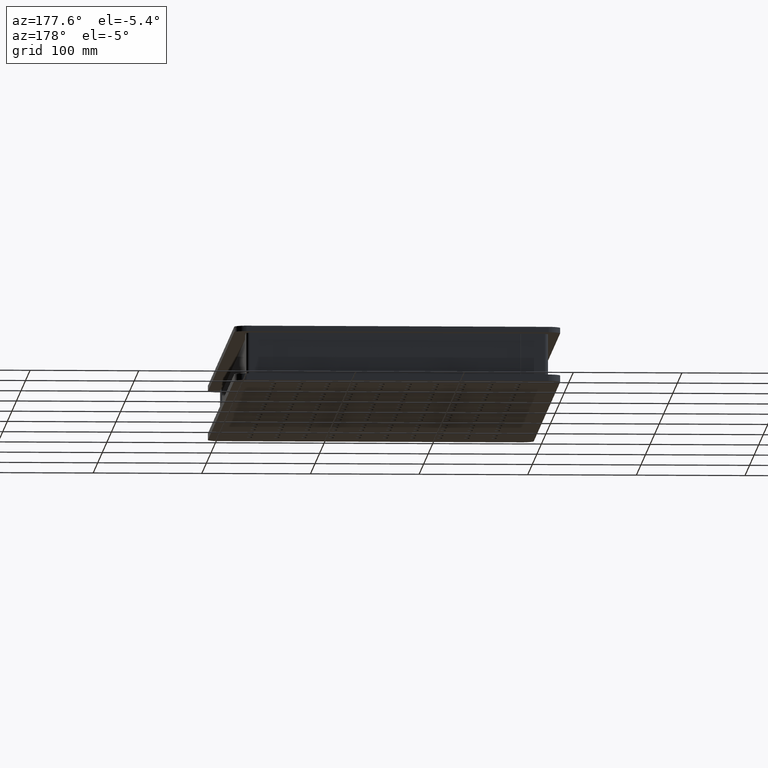
[diagram: clean part render]
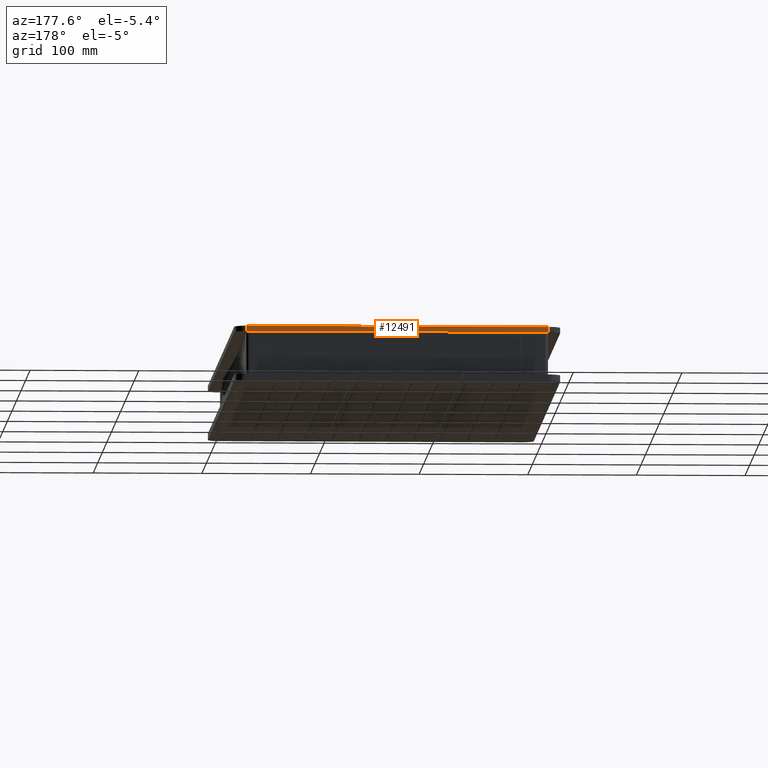
[diagram: same view with one face highlighted and labeled with its STEP entity id]
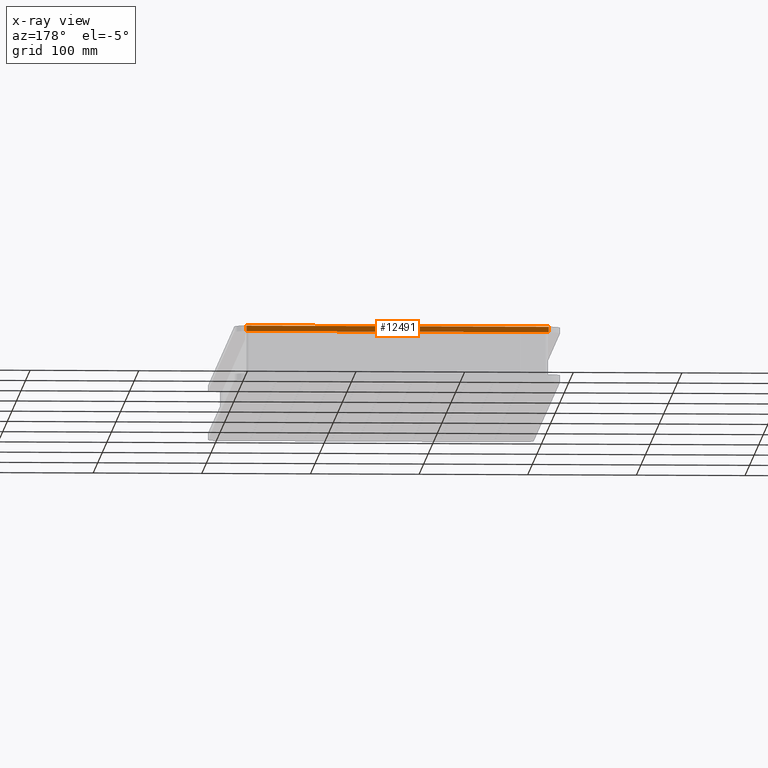
[diagram: x-ray of the same camera — body ghosted, the highlighted face saturated]
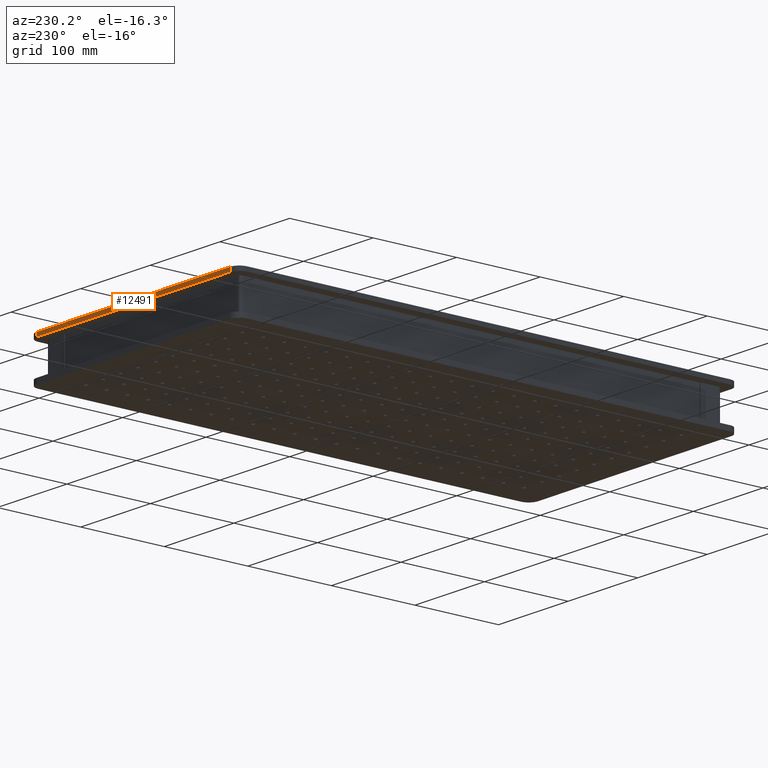
[diagram: same view with one face highlighted and labeled with its STEP entity id]
A machine part, auxiliary view. The second image highlights one B-rep face of the part: STEP entity #12491.
The next image is the same camera in x-ray: the body ghosted, the highlighted face saturated — about 0% of this face is hidden behind the body in this view.
A second angle (auxiliary view) of the same face is appended — the face is thin or edge-on in the first view.
In plain terms, the highlighted planar face has unit normal (0, -1, 0).
Its self-contained STEP definition (entity closure, byte-faithful):
#984 = VECTOR ( 'NONE', #2076, 1000.000000000000000 ) ;
#1102 = LINE ( 'NONE', #8623, #12375 ) ;
#2076 = DIRECTION ( 'NONE',  ( -1.000000000000000000, -0.000000000000000000, -0.000000000000000000 ) ) ;
#2217 = EDGE_CURVE ( 'NONE', #15389, #5450, #1102, .T. ) ;
#3413 = CARTESIAN_POINT ( 'NONE',  ( 114.6333857621487624, 308.9691974502528637, -350.0013852687679901 ) ) ;
#3646 = PLANE ( 'NONE',  #7671 ) ;
#3710 = VERTEX_POINT ( 'NONE', #13572 ) ;
#3784 = ORIENTED_EDGE ( 'NONE', *, *, #17242, .F. ) ;
#3897 = EDGE_CURVE ( 'NONE', #19291, #15389, #9606, .T. ) ;
#3964 = DIRECTION ( 'NONE',  ( -0.000000000000000000, -1.224646799147353207E-16, -1.000000000000000000 ) ) ;
#5450 = VERTEX_POINT ( 'NONE', #15523 ) ;
#5481 = CARTESIAN_POINT ( 'NONE',  ( -385.3666142378513655, 308.9691974502528637, -355.0013852687679901 ) ) ;
#7149 = DIRECTION ( 'NONE',  ( 0.000000000000000000, 1.224646799147353207E-16, 1.000000000000000000 ) ) ;
#7671 = AXIS2_PLACEMENT_3D ( 'NONE', #12654, #9405, #18507 ) ;
#8233 = CARTESIAN_POINT ( 'NONE',  ( 392.6333857621489187, 308.9691974502528637, -350.0013852687679901 ) ) ;
#8257 = DIRECTION ( 'NONE',  ( 1.000000000000000000, 0.000000000000000000, 0.000000000000000000 ) ) ;
#8534 = VECTOR ( 'NONE', #7149, 1000.000000000000000 ) ;
#8623 = CARTESIAN_POINT ( 'NONE',  ( 114.6333857621487624, 308.9691974502528637, -350.0013852687679901 ) ) ;
#9394 = VECTOR ( 'NONE', #8257, 1000.000000000000000 ) ;
#9405 = DIRECTION ( 'NONE',  ( 0.000000000000000000, -1.000000000000000000, 1.224646799147353207E-16 ) ) ;
#9606 = LINE ( 'NONE', #15644, #984 ) ;
#10060 = CARTESIAN_POINT ( 'NONE',  ( 392.6333857621489187, 308.9691974502528637, -350.0013852687679901 ) ) ;
#11403 = LINE ( 'NONE', #8233, #8534 ) ;
#12375 = VECTOR ( 'NONE', #3964, 1000.000000000000000 ) ;
#12491 = ADVANCED_FACE ( 'NONE', ( #12760 ), #3646, .F. ) ;
#12654 = CARTESIAN_POINT ( 'NONE',  ( -385.3666142378513655, 308.9691974502528637, -350.0013852687679901 ) ) ;
#12760 = FACE_OUTER_BOUND ( 'NONE', #15842, .T. ) ;
#13572 = CARTESIAN_POINT ( 'NONE',  ( 392.6333857621489187, 308.9691974502528637, -355.0013852687679901 ) ) ;
#15389 = VERTEX_POINT ( 'NONE', #3413 ) ;
#15523 = CARTESIAN_POINT ( 'NONE',  ( 114.6333857621487624, 308.9691974502528637, -355.0013852687679901 ) ) ;
#15547 = EDGE_CURVE ( 'NONE', #5450, #3710, #15891, .T. ) ;
#15644 = CARTESIAN_POINT ( 'NONE',  ( 1092.633385762148919, 308.9691974502528637, -350.0013852687679901 ) ) ;
#15842 = EDGE_LOOP ( 'NONE', ( #17911, #3784, #17827, #16192 ) ) ;
#15891 = LINE ( 'NONE', #5481, #9394 ) ;
#16192 = ORIENTED_EDGE ( 'NONE', *, *, #2217, .F. ) ;
#17242 = EDGE_CURVE ( 'NONE', #3710, #19291, #11403, .T. ) ;
#17827 = ORIENTED_EDGE ( 'NONE', *, *, #15547, .F. ) ;
#17911 = ORIENTED_EDGE ( 'NONE', *, *, #3897, .F. ) ;
#18507 = DIRECTION ( 'NONE',  ( 1.000000000000000000, 0.000000000000000000, 0.000000000000000000 ) ) ;
#19291 = VERTEX_POINT ( 'NONE', #10060 ) ;